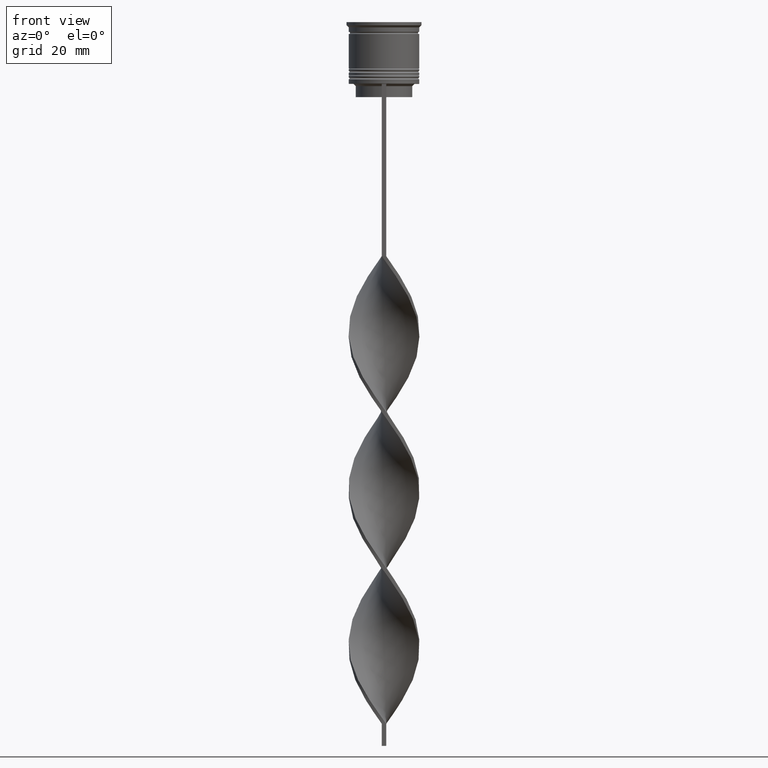
[diagram: clean part render]
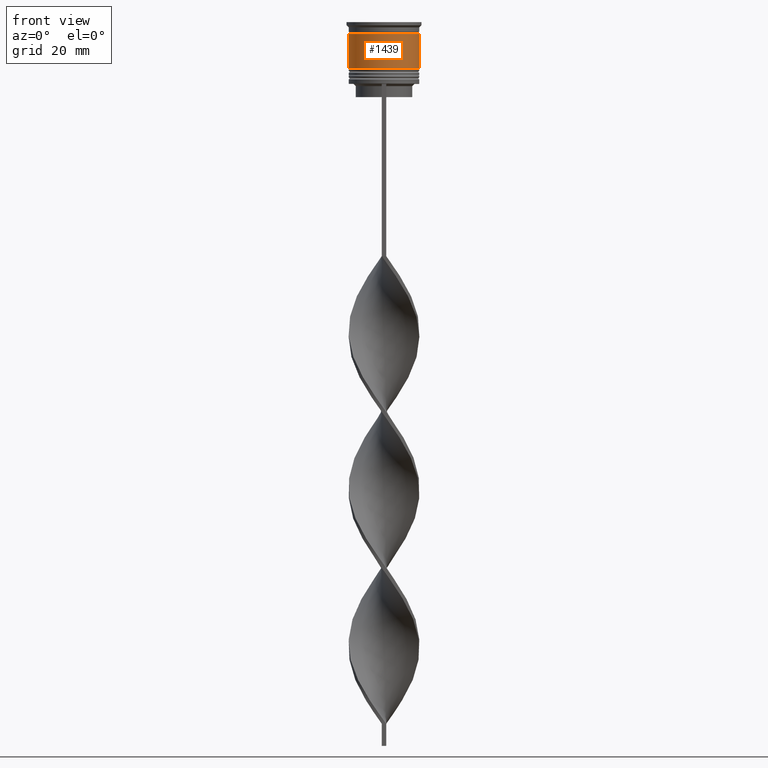
[diagram: same view with one face highlighted and labeled with its STEP entity id]
A machine part, front view. The second image highlights one B-rep face of the part: STEP entity #1439.
In plain terms, the highlighted cylindrical surface (edge-blend (fillet) strip) has radius 8 mm, axis along (-0, -0, 1).
Its self-contained STEP definition (entity closure, byte-faithful):
#203 = CARTESIAN_POINT ( 'NONE',  ( 8.000000000000001776, 0.000000000000000000, -10.50000000000000000 ) ) ;
#296 = EDGE_CURVE ( 'NONE', #2457, #617, #444, .T. ) ;
#424 = EDGE_CURVE ( 'NONE', #3281, #617, #2229, .T. ) ;
#444 = CIRCLE ( 'NONE', #1537, 7.999999999999998224 ) ;
#617 = VERTEX_POINT ( 'NONE', #3753 ) ;
#647 = CARTESIAN_POINT ( 'NONE',  ( 0.000000000000000000, 0.000000000000000000, 0.000000000000000000 ) ) ;
#713 = CARTESIAN_POINT ( 'NONE',  ( 0.000000000000000000, 0.000000000000000000, -2.700000000000001510 ) ) ;
#714 = EDGE_CURVE ( 'NONE', #2060, #2457, #2881, .T. ) ;
#1218 = ORIENTED_EDGE ( 'NONE', *, *, #296, .F. ) ;
#1279 = DIRECTION ( 'NONE',  ( -0.000000000000000000, -0.000000000000000000, 1.000000000000000000 ) ) ;
#1321 = DIRECTION ( 'NONE',  ( -0.000000000000000000, -0.000000000000000000, 1.000000000000000000 ) ) ;
#1439 = ADVANCED_FACE ( 'NONE', ( #2331 ), #3494, .T. ) ;
#1531 = DIRECTION ( 'NONE',  ( -0.000000000000000000, -0.000000000000000000, 1.000000000000000000 ) ) ;
#1537 = AXIS2_PLACEMENT_3D ( 'NONE', #713, #1531, #2753 ) ;
#1681 = EDGE_LOOP ( 'NONE', ( #2126, #2425, #3103, #1218 ) ) ;
#1970 = CARTESIAN_POINT ( 'NONE',  ( -8.000000000000001776, 9.797174393178827630E-16, -10.50000000000000000 ) ) ;
#2050 = DIRECTION ( 'NONE',  ( 1.000000000000000000, 0.000000000000000000, 0.000000000000000000 ) ) ;
#2060 = VERTEX_POINT ( 'NONE', #1970 ) ;
#2126 = ORIENTED_EDGE ( 'NONE', *, *, #714, .F. ) ;
#2171 = CARTESIAN_POINT ( 'NONE',  ( 0.000000000000000000, 0.000000000000000000, -10.50000000000000000 ) ) ;
#2178 = CARTESIAN_POINT ( 'NONE',  ( -7.999999999999998224, 9.797174393178823685E-16, -2.700000000000001510 ) ) ;
#2191 = DIRECTION ( 'NONE',  ( -0.000000000000000000, -0.000000000000000000, 1.000000000000000000 ) ) ;
#2209 = CARTESIAN_POINT ( 'NONE',  ( 8.000000000000000000, 0.000000000000000000, 0.000000000000000000 ) ) ;
#2229 = LINE ( 'NONE', #2209, #2916 ) ;
#2278 = AXIS2_PLACEMENT_3D ( 'NONE', #2171, #1279, #2426 ) ;
#2323 = AXIS2_PLACEMENT_3D ( 'NONE', #647, #2952, #2050 ) ;
#2331 = FACE_OUTER_BOUND ( 'NONE', #1681, .T. ) ;
#2425 = ORIENTED_EDGE ( 'NONE', *, *, #2902, .T. ) ;
#2426 = DIRECTION ( 'NONE',  ( 1.000000000000000000, 0.000000000000000000, 0.000000000000000000 ) ) ;
#2457 = VERTEX_POINT ( 'NONE', #2178 ) ;
#2478 = CARTESIAN_POINT ( 'NONE',  ( -8.000000000000000000, 9.797174393178825657E-16, 0.000000000000000000 ) ) ;
#2753 = DIRECTION ( 'NONE',  ( 1.000000000000000000, 0.000000000000000000, 0.000000000000000000 ) ) ;
#2881 = LINE ( 'NONE', #2478, #3167 ) ;
#2902 = EDGE_CURVE ( 'NONE', #2060, #3281, #3727, .T. ) ;
#2916 = VECTOR ( 'NONE', #2191, 1000.000000000000000 ) ;
#2952 = DIRECTION ( 'NONE',  ( -0.000000000000000000, -0.000000000000000000, 1.000000000000000000 ) ) ;
#3103 = ORIENTED_EDGE ( 'NONE', *, *, #424, .T. ) ;
#3167 = VECTOR ( 'NONE', #1321, 1000.000000000000000 ) ;
#3281 = VERTEX_POINT ( 'NONE', #203 ) ;
#3494 = CYLINDRICAL_SURFACE ( 'NONE', #2323, 8.000000000000000000 ) ;
#3727 = CIRCLE ( 'NONE', #2278, 8.000000000000001776 ) ;
#3753 = CARTESIAN_POINT ( 'NONE',  ( 7.999999999999998224, 0.000000000000000000, -2.700000000000001510 ) ) ;